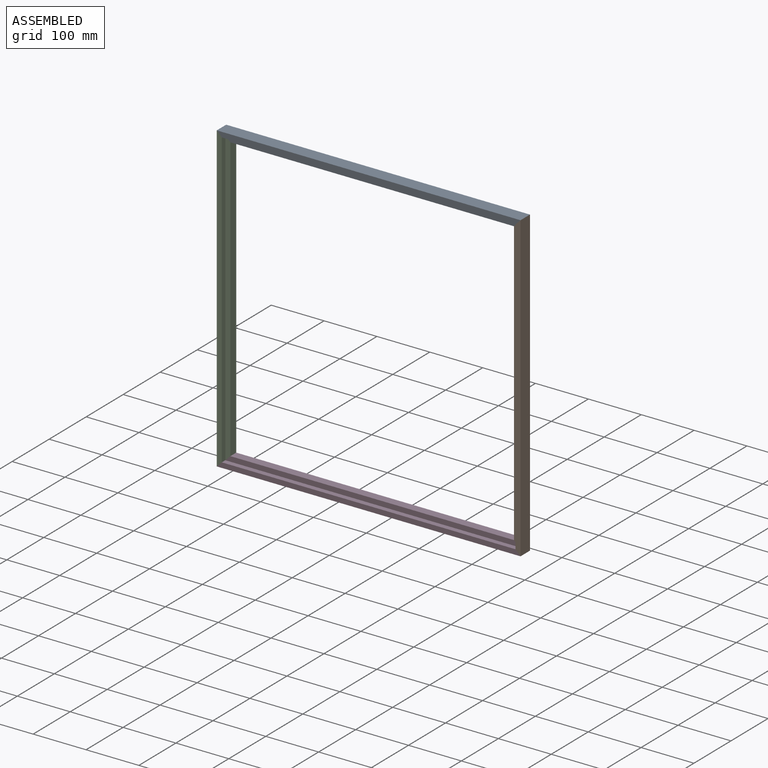
[diagram: assembled view]
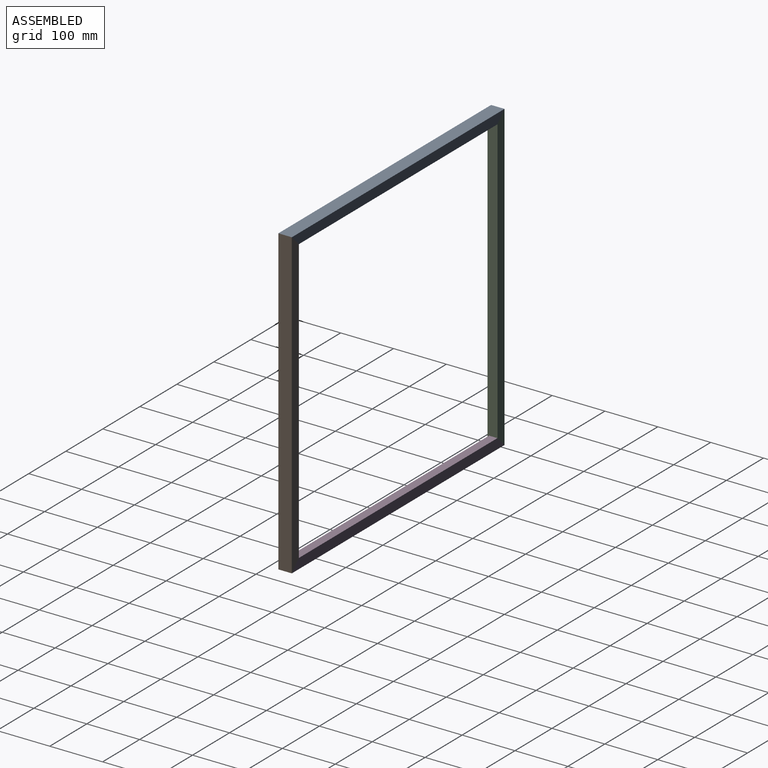
[diagram: assembled view, second angle]
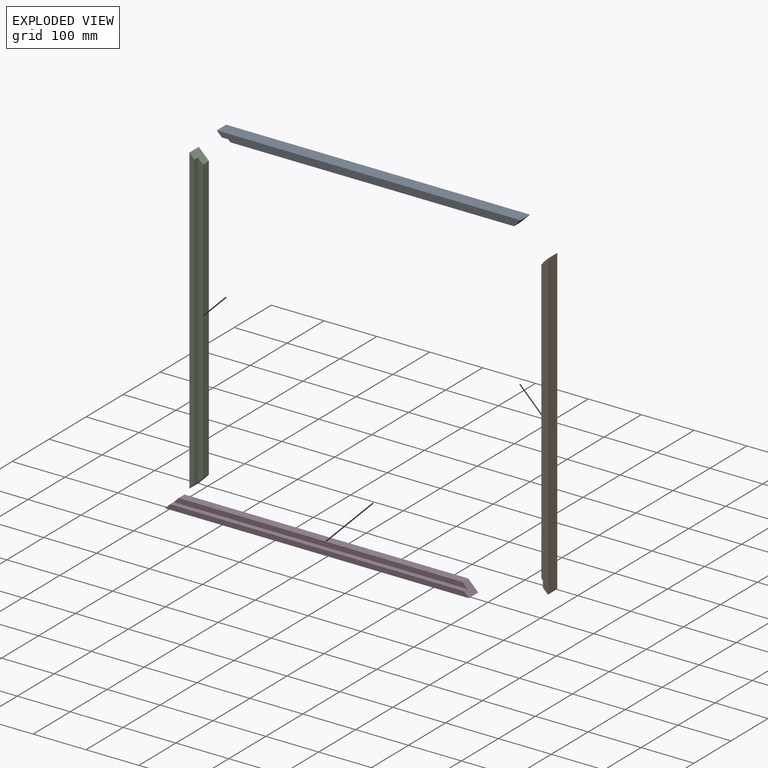
[diagram: exploded view]
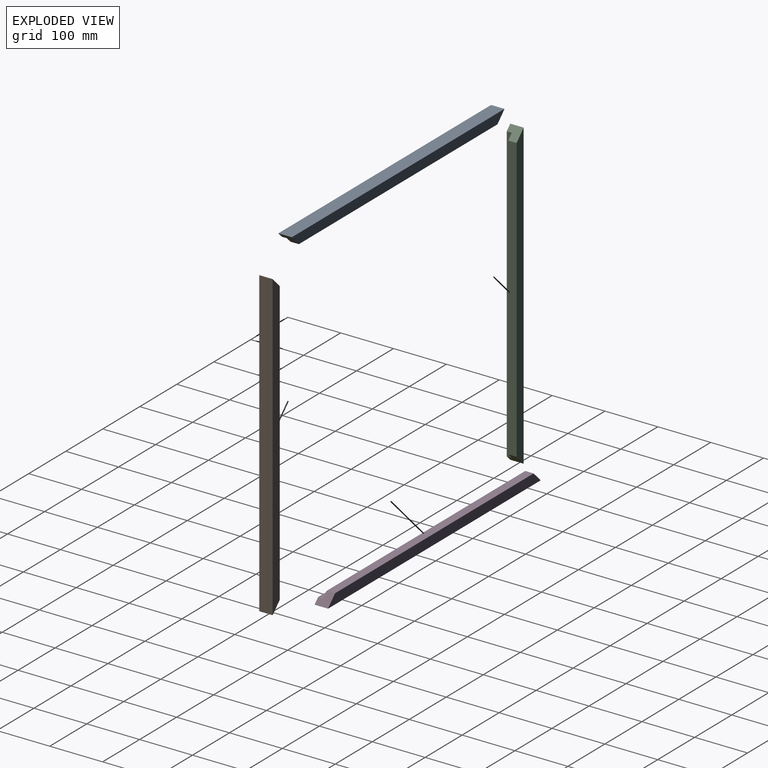
[diagram: exploded view, second angle]
ASSEMBLY  parts=4 mates=3
PART A: 8 faces, bbox 19.1x25.4x574.7 mm
  f0: plane 536.58x15.88mm, normal (1,0,0), area 8518.1mm2, adj f1,f4,f5,f7
  f1: plane 25.4x19.05mm, normal (0.71,0,0.71), area 556mm2, adj f0,f2,f3,f5,f6,f7
  f2: plane 574.68x9.53mm, normal (0,-1,0), area 5383.1mm2, adj f1,f3,f4,f6
  f3: plane 574.68x25.4mm, normal (-1,0,0), area 14596.7mm2, adj f1,f2,f4,f5
  f4: plane 25.4x19.05mm, normal (0.71,0,-0.71), area 556mm2, adj f0,f2,f3,f5,f6,f7
  f5: plane 574.68x19.05mm, normal (0,1,0), area 10584.7mm2, adj f0,f1,f3,f4
  f6: plane 555.63x9.53mm, normal (1,0,0), area 5292.3mm2, adj f1,f2,f4,f7
  f7: plane 555.63x9.53mm, normal (0,-1,0), area 5201.6mm2, adj f0,f1,f4,f6
PART B: same geometry as A
PART C: same geometry as A
PART D: same geometry as A
PLACE A rot(axis=(0,1,0),90deg) t=(144.87,-71.35,193.34)mm
PLACE B rot(axis=(0,-1,0),180deg) t=(344.38,-71.35,-11.29)mm
PLACE C t=(-59.76,-71.35,-6.16)mm fixed
PLACE D rot(axis=(0,-1,0),90deg) t=(139.74,-71.35,-210.8)mm
MATE fastened A.f4 <-> C.f1  axis (-0.71,0,-0.71) through (-136.6,-82.22,270.19)mm
MATE fastened B.f4 <-> A.f1  axis (-0.71,0,0.71) through (421.22,-82.22,270.19)mm
MATE fastened D.f4 <-> B.f1  axis (0.71,0,0.71) through (421.22,-82.22,-287.64)mm
